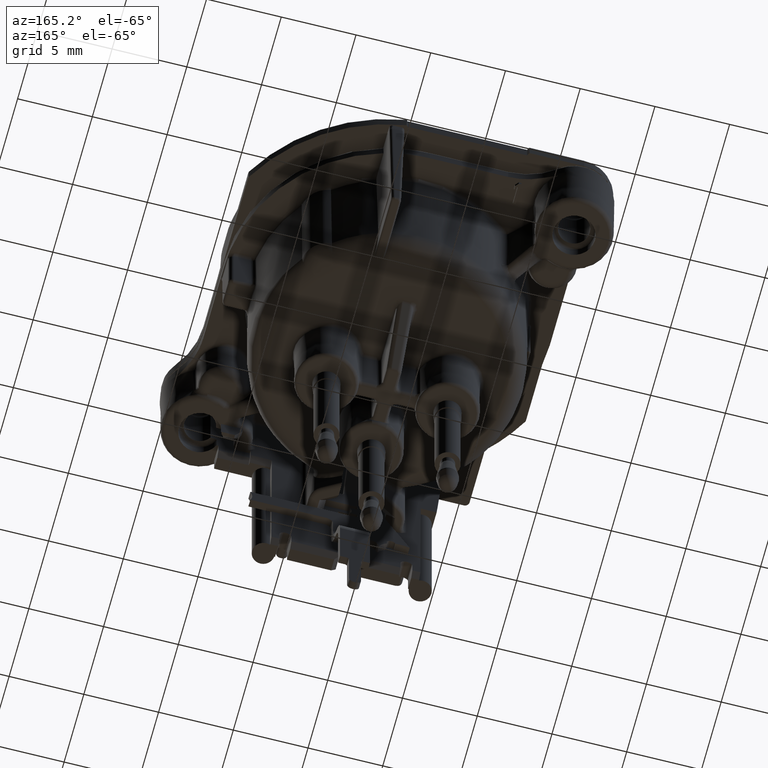
[diagram: clean part render]
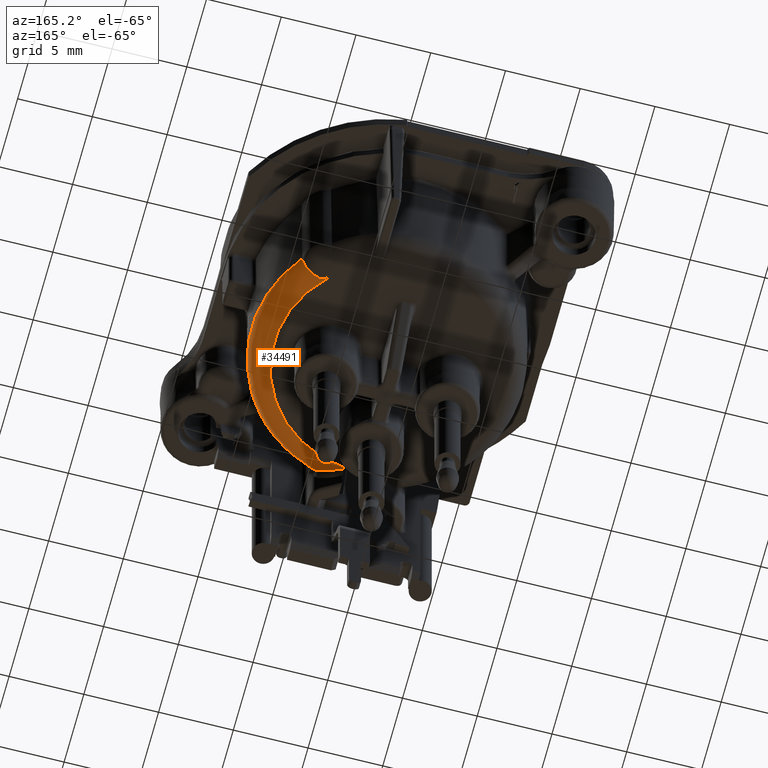
[diagram: same view with one face highlighted and labeled with its STEP entity id]
A machine part, auxiliary view. The second image highlights one B-rep face of the part: STEP entity #34491.
In plain terms, the highlighted toroidal blend (fillet) surface has major radius 7.556 mm and minor (blend) radius 1.5 mm.
Its self-contained STEP definition (entity closure, byte-faithful):
#7655=CARTESIAN_POINT('',(7.141501285638E0,5.56851162E0,-9.218143833828E0));
#8911=CARTESIAN_POINT('',(2.225007864128E0,-8.216354409265E0,
-1.035564866611E1));
#8912=CARTESIAN_POINT('',(2.254239939178E0,-8.230253539716E0,
-1.033822434973E1));
#8913=CARTESIAN_POINT('',(2.311023721539E0,-8.259779060373E0,
-1.030028483036E1));
#8914=CARTESIAN_POINT('',(2.391436033786E0,-8.309378043124E0,
-1.023155835169E1));
#8915=CARTESIAN_POINT('',(2.462830006600E0,-8.361031679633E0,
-1.015282661574E1));
#8916=CARTESIAN_POINT('',(2.523689142496E0,-8.411825486549E0,
-1.006628831254E1));
#8917=CARTESIAN_POINT('',(2.573681903882E0,-8.459218654150E0,
-9.974569003550E0));
#8918=CARTESIAN_POINT('',(2.613097170934E0,-8.500857931744E0,
-9.881966716460E0));
#8919=CARTESIAN_POINT('',(2.646025728921E0,-8.538992644100E0,
-9.783251573897E0));
#8920=CARTESIAN_POINT('',(2.674898694844E0,-8.575513861168E0,
-9.668339883364E0));
#8921=CARTESIAN_POINT('',(2.697991916552E0,-8.607252587281E0,
-9.536174534267E0));
#8922=CARTESIAN_POINT('',(2.713730075604E0,-8.630385524400E0,
-9.388118207413E0));
#8923=CARTESIAN_POINT('',(2.718386200221E0,-8.637529343283E0,
-9.276602927121E0));
#8924=CARTESIAN_POINT('',(2.718787907992E0,-8.638144655068E0,
-9.218136702175E0));
#8926=CARTESIAN_POINT('',(0.E0,0.E0,-9.218143833828E0));
#8927=DIRECTION('',(0.E0,0.E0,1.E0));
#8928=DIRECTION('',(3.002227761737E-1,-9.538691129639E-1,0.E0));
#8929=AXIS2_PLACEMENT_3D('',#8926,#8927,#8928);
#8931=CARTESIAN_POINT('',(7.141501285638E0,5.56851162E0,-9.218143833828E0));
#8932=CARTESIAN_POINT('',(7.140363829401E0,5.568130336945E0,-9.311677252098E0));
#8933=CARTESIAN_POINT('',(7.121437534759E0,5.560489438757E0,-9.492890903120E0));
#8934=CARTESIAN_POINT('',(7.051261413969E0,5.532073586292E0,-9.740982577055E0));
#8935=CARTESIAN_POINT('',(6.951075627711E0,5.492133194722E0,-9.954862100472E0));
#8936=CARTESIAN_POINT('',(6.829486726049E0,5.444902039040E0,-1.013596077637E1));
#8937=CARTESIAN_POINT('',(6.699753358048E0,5.396278685597E0,-1.027956180640E1));
#8938=CARTESIAN_POINT('',(6.571274377264E0,5.350216565990E0,-1.038995278199E1));
#8939=CARTESIAN_POINT('',(6.446710165318E0,5.307892040028E0,-1.047482997417E1));
#8940=CARTESIAN_POINT('',(6.326304100696E0,5.269577936695E0,-1.054036452966E1));
#8941=CARTESIAN_POINT('',(6.207104042662E0,5.234672033966E0,-1.059184473607E1));
#8942=CARTESIAN_POINT('',(6.087066482317E0,5.203354871644E0,-1.063185302861E1));
#8943=CARTESIAN_POINT('',(5.968928051255E0,5.177393684307E0,-1.066097071183E1));
#8944=CARTESIAN_POINT('',(5.854409164263E0,5.158735600602E0,-1.068052133470E1));
#8945=CARTESIAN_POINT('',(5.784289192648E0,5.153092281791E0,-1.068804264199E1));
#8946=CARTESIAN_POINT('',(5.750524781642E0,5.152944040210E0,-1.069084467006E1));
#8948=CARTESIAN_POINT('',(5.626298010358E0,5.227620195725E0,-9.197864033512E0));
#8949=DIRECTION('',(4.225793594926E-1,9.062688847885E-1,-1.016825427287E-2));
#8950=DIRECTION('',(8.281784752307E-2,-4.978410367612E-2,-9.953204243623E-1));
#8951=AXIS2_PLACEMENT_3D('',#8948,#8949,#8950);
#8953=CARTESIAN_POINT('',(5.629516306516E0,5.209297742477E0,-1.069705430443E1));
#8954=CARTESIAN_POINT('',(5.618982063236E0,5.215754327457E0,-1.069715594930E1));
#8955=CARTESIAN_POINT('',(5.598318458386E0,5.226791193961E0,-1.069835192245E1));
#8956=CARTESIAN_POINT('',(5.568705436654E0,5.237891988280E0,-1.069814301874E1));
#8957=CARTESIAN_POINT('',(5.542127421060E0,5.248101648117E0,-1.069843465495E1));
#8958=CARTESIAN_POINT('',(5.518839672737E0,5.258597248524E0,-1.069858324823E1));
#8959=CARTESIAN_POINT('',(5.505323308233E0,5.266298820282E0,-1.069871322232E1));
#8960=CARTESIAN_POINT('',(5.499013855536E0,5.270152778273E0,-1.069877393887E1));
#8962=CARTESIAN_POINT('',(5.499013855536E0,5.270152778273E0,-1.069877393887E1));
#8963=CARTESIAN_POINT('',(5.491912868836E0,5.274839927507E0,-1.069884654689E1));
#8964=CARTESIAN_POINT('',(5.478304057055E0,5.283764902597E0,-1.069898479006E1));
#8965=CARTESIAN_POINT('',(5.459727868555E0,5.295651982798E0,-1.069916877194E1));
#8966=CARTESIAN_POINT('',(5.442550944795E0,5.305935400027E0,-1.069932959915E1));
#8967=CARTESIAN_POINT('',(5.426712960504E0,5.314975901908E0,-1.069947179123E1));
#8968=CARTESIAN_POINT('',(5.412023750012E0,5.322807834451E0,-1.069959636120E1));
#8969=CARTESIAN_POINT('',(5.398359072451E0,5.329520415186E0,-1.069970482880E1));
#8970=CARTESIAN_POINT('',(5.385592537739E0,5.335178953129E0,-1.069979836740E1));
#8971=CARTESIAN_POINT('',(5.373652664412E0,5.339651543546E0,-1.069987618138E1));
#8972=CARTESIAN_POINT('',(5.362437358010E0,5.343089455838E0,-1.069994018963E1));
#8973=CARTESIAN_POINT('',(5.352083948157E0,5.344773419576E0,-1.069998383974E1));
#8974=CARTESIAN_POINT('',(5.345773763290E0,5.343796985118E0,-1.069999626288E1));
#8975=CARTESIAN_POINT('',(5.342907192088E0,5.342907187207E0,-1.07E1));
#8977=CARTESIAN_POINT('',(0.E0,0.E0,-1.07E1));
#8978=DIRECTION('',(0.E0,0.E0,-1.E0));
#8979=DIRECTION('',(7.071067824785E-1,7.071067798946E-1,0.E0));
#8980=AXIS2_PLACEMENT_3D('',#8977,#8978,#8979);
#8982=CARTESIAN_POINT('',(8.751326796778E-1,-7.579124655686E0,
-1.069820139797E1));
#8983=CARTESIAN_POINT('',(8.751483699219E-1,-7.566822954944E0,
-1.069880058422E1));
#8984=CARTESIAN_POINT('',(8.751718969832E-1,-7.542193826065E0,
-1.069969799495E1));
#8985=CARTESIAN_POINT('',(8.751797960856E-1,-7.517511034008E0,-1.07E1));
#8986=CARTESIAN_POINT('',(8.751797960856E-1,-7.505156542578E0,-1.07E1));
#8988=CARTESIAN_POINT('',(8.751326796778E-1,-7.579124655686E0,
-1.069820139797E1));
#8989=CARTESIAN_POINT('',(1.016397277827E0,-7.645607932363E0,
-1.069417190967E1));
#8990=CARTESIAN_POINT('',(1.286518904621E0,-7.772662725388E0,
-1.067239916443E1));
#8991=CARTESIAN_POINT('',(1.646966780469E0,-7.942508011044E0,
-1.060106028659E1));
#8992=CARTESIAN_POINT('',(1.962455685140E0,-8.091656913116E0,
-1.049520335115E1));
#8993=CARTESIAN_POINT('',(2.142892247939E0,-8.177310104940E0,
-1.040459473697E1));
#8994=CARTESIAN_POINT('',(2.225007864128E0,-8.216354409265E0,
-1.035564866611E1));
#9048=CARTESIAN_POINT('',(5.342907192088E0,5.342907187207E0,-1.07E1));
#19515=VERTEX_POINT('',#7655);
#19518=CARTESIAN_POINT('',(5.750524781642E0,5.152944040210E0,
-1.069084467006E1));
#19519=CARTESIAN_POINT('',(5.629491074218E0,5.209302748531E0,
-1.069774878758E1));
#19520=VERTEX_POINT('',#19518);
#19521=VERTEX_POINT('',#19519);
#19526=VERTEX_POINT('',#8960);
#19527=VERTEX_POINT('',#9048);
#19557=CARTESIAN_POINT('',(8.751797960856E-1,-7.505156542578E0,-1.07E1));
#19558=VERTEX_POINT('',#19557);
#19945=VERTEX_POINT('',#8911);
#19946=VERTEX_POINT('',#8924);
#19950=VERTEX_POINT('',#8988);
#34468=CARTESIAN_POINT('',(0.E0,0.E0,-9.2E0));
#34469=DIRECTION('',(0.E0,0.E0,-1.E0));
#34470=DIRECTION('',(0.E0,-1.E0,0.E0));
#34471=AXIS2_PLACEMENT_3D('',#34468,#34469,#34470);
#34472=TOROIDAL_SURFACE('',#34471,7.556011805448E0,1.5E0);
#34474=ORIENTED_EDGE('',*,*,#34473,.T.);
#34475=ORIENTED_EDGE('',*,*,#32289,.T.);
#34477=ORIENTED_EDGE('',*,*,#34476,.T.);
#34479=ORIENTED_EDGE('',*,*,#34478,.T.);
#34481=ORIENTED_EDGE('',*,*,#34480,.T.);
#34483=ORIENTED_EDGE('',*,*,#34482,.T.);
#34485=ORIENTED_EDGE('',*,*,#34484,.T.);
#34486=ORIENTED_EDGE('',*,*,#22794,.F.);
#34488=ORIENTED_EDGE('',*,*,#34487,.T.);
#34489=EDGE_LOOP('',(#34474,#34475,#34477,#34479,#34481,#34483,#34485,#34486,
#34488));
#34490=FACE_OUTER_BOUND('',#34489,.F.);
#34491=ADVANCED_FACE('',(#34490),#34472,.T.);
#8925=B_SPLINE_CURVE_WITH_KNOTS('',3,(#8911,#8912,#8913,#8914,#8915,#8916,#8917,
#8918,#8919,#8920,#8921,#8922,#8923,#8924),.UNSPECIFIED.,.F.,.F.,(4,1,1,1,1,1,1,
1,1,1,1,4),(0.E0,9.090909090909E-2,1.818181818182E-1,2.727272727273E-1,
3.636363636364E-1,4.545454545455E-1,5.454545454545E-1,6.363636363636E-1,
7.272727272727E-1,8.181818181818E-1,9.090909090909E-1,1.E0),.UNSPECIFIED.);
#8930=CIRCLE('',#8929,9.055902068532E0);
#8947=B_SPLINE_CURVE_WITH_KNOTS('',3,(#8931,#8932,#8933,#8934,#8935,#8936,#8937,
#8938,#8939,#8940,#8941,#8942,#8943,#8944,#8945,#8946),.UNSPECIFIED.,.F.,.F.,(4,
1,1,1,1,1,1,1,1,1,1,1,1,4),(0.E0,7.692307692308E-2,1.538461538462E-1,
2.307692307692E-1,3.076923076923E-1,3.846153846154E-1,4.615384615385E-1,
5.384615384615E-1,6.153846153846E-1,6.923076923077E-1,7.692307692308E-1,
8.461538461538E-1,9.230769230769E-1,1.E0),.UNSPECIFIED.);
#8952=CIRCLE('',#8951,1.5E0);
#8961=B_SPLINE_CURVE_WITH_KNOTS('',3,(#8953,#8954,#8955,#8956,#8957,#8958,#8959,
#8960),.UNSPECIFIED.,.F.,.F.,(4,1,1,1,1,4),(0.E0,2.E-1,4.E-1,6.E-1,8.E-1,1.E0),
.UNSPECIFIED.);
#8976=B_SPLINE_CURVE_WITH_KNOTS('',3,(#8962,#8963,#8964,#8965,#8966,#8967,#8968,
#8969,#8970,#8971,#8972,#8973,#8974,#8975),.UNSPECIFIED.,.F.,.F.,(4,1,1,1,1,1,1,
1,1,1,1,4),(0.E0,9.090909090909E-2,1.818181818182E-1,2.727272727273E-1,
3.636363636364E-1,4.545454545455E-1,5.454545454545E-1,6.363636363636E-1,
7.272727272727E-1,8.181818181818E-1,9.090909090909E-1,1.E0),.UNSPECIFIED.);
#8981=CIRCLE('',#8980,7.556011805448E0);
#8987=B_SPLINE_CURVE_WITH_KNOTS('',3,(#8982,#8983,#8984,#8985,#8986),
.UNSPECIFIED.,.F.,.F.,(4,1,4),(0.E0,5.E-1,1.E0),.UNSPECIFIED.);
#8995=B_SPLINE_CURVE_WITH_KNOTS('',3,(#8988,#8989,#8990,#8991,#8992,#8993,
#8994),.UNSPECIFIED.,.F.,.F.,(4,1,1,1,4),(0.E0,2.5E-1,5.E-1,7.5E-1,1.E0),
.UNSPECIFIED.);
#22794=EDGE_CURVE('',#19950,#19558,#8987,.T.);
#32289=EDGE_CURVE('',#19946,#19515,#8930,.T.);
#34473=EDGE_CURVE('',#19945,#19946,#8925,.T.);
#34476=EDGE_CURVE('',#19515,#19520,#8947,.T.);
#34478=EDGE_CURVE('',#19520,#19521,#8952,.T.);
#34480=EDGE_CURVE('',#19521,#19526,#8961,.T.);
#34482=EDGE_CURVE('',#19526,#19527,#8976,.T.);
#34484=EDGE_CURVE('',#19527,#19558,#8981,.T.);
#34487=EDGE_CURVE('',#19950,#19945,#8995,.T.);